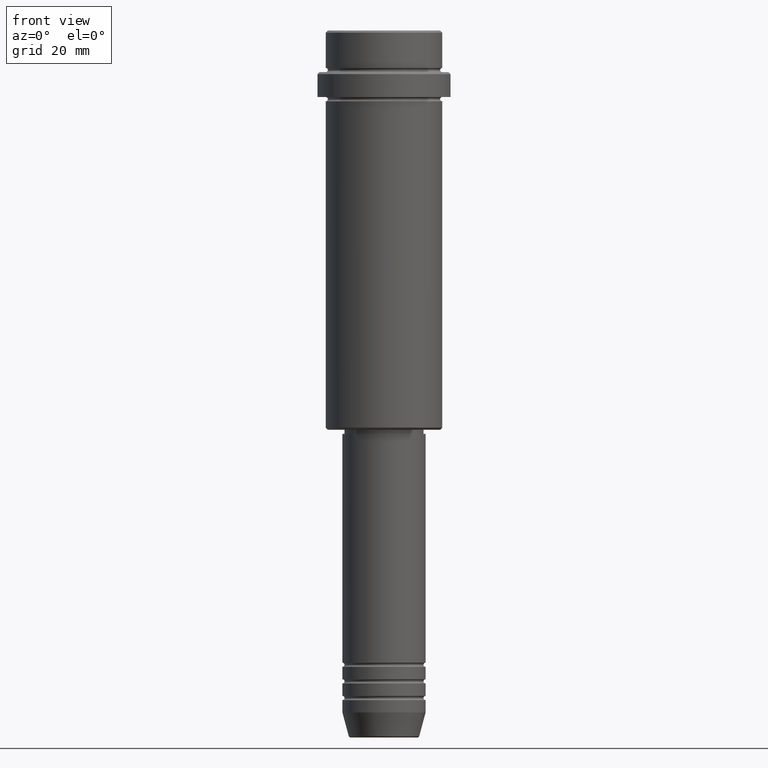
[diagram: clean part render]
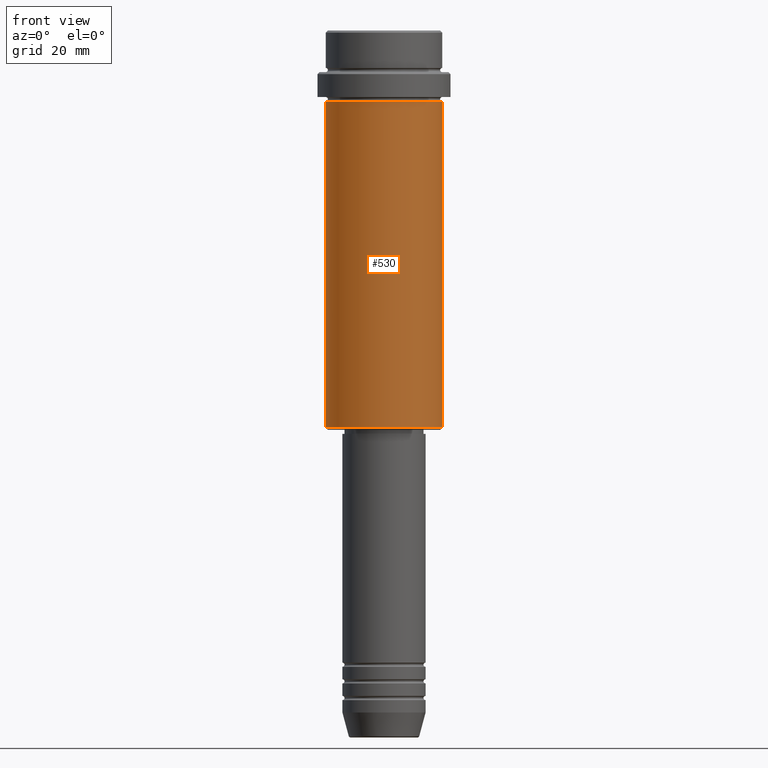
[diagram: same view with one face highlighted and labeled with its STEP entity id]
A machine part, front view. The second image highlights one B-rep face of the part: STEP entity #530.
In plain terms, the highlighted cylindrical surface (partial cylindrical patch) has radius 14 mm, axis along (-0, -0, 1).
Its self-contained STEP definition (entity closure, byte-faithful):
#24 = VECTOR ( 'NONE', #208, 1000.000000000000000 ) ;
#53 = CARTESIAN_POINT ( 'NONE',  ( 13.99999999999997868, 0.000000000000000000, -17.00000000000000355 ) ) ;
#69 = CARTESIAN_POINT ( 'NONE',  ( 13.99999999999998934, 0.000000000000000000, -95.50000000000000000 ) ) ;
#125 = DIRECTION ( 'NONE',  ( -0.000000000000000000, -0.000000000000000000, 1.000000000000000000 ) ) ;
#156 = CIRCLE ( 'NONE', #294, 13.99999999999998934 ) ;
#195 = DIRECTION ( 'NONE',  ( -0.000000000000000000, -0.000000000000000000, 1.000000000000000000 ) ) ;
#208 = DIRECTION ( 'NONE',  ( -0.000000000000000000, -0.000000000000000000, 1.000000000000000000 ) ) ;
#221 = CARTESIAN_POINT ( 'NONE',  ( -13.99999999999998934, 1.714505518806293257E-15, 0.000000000000000000 ) ) ;
#237 = CARTESIAN_POINT ( 'NONE',  ( 0.000000000000000000, 0.000000000000000000, 0.000000000000000000 ) ) ;
#257 = ORIENTED_EDGE ( 'NONE', *, *, #936, .F. ) ;
#272 = CIRCLE ( 'NONE', #594, 13.99999999999997868 ) ;
#294 = AXIS2_PLACEMENT_3D ( 'NONE', #1107, #125, #810 ) ;
#344 = DIRECTION ( 'NONE',  ( 1.000000000000000000, 0.000000000000000000, 0.000000000000000000 ) ) ;
#352 = DIRECTION ( 'NONE',  ( -0.000000000000000000, -0.000000000000000000, 1.000000000000000000 ) ) ;
#403 = DIRECTION ( 'NONE',  ( -0.000000000000000000, -0.000000000000000000, 1.000000000000000000 ) ) ;
#414 = VECTOR ( 'NONE', #403, 1000.000000000000000 ) ;
#526 = LINE ( 'NONE', #844, #414 ) ;
#530 = ADVANCED_FACE ( 'NONE', ( #1134 ), #908, .T. ) ;
#564 = EDGE_CURVE ( 'NONE', #848, #1193, #156, .T. ) ;
#594 = AXIS2_PLACEMENT_3D ( 'NONE', #1407, #195, #1298 ) ;
#625 = EDGE_LOOP ( 'NONE', ( #257, #960, #1004, #862 ) ) ;
#731 = AXIS2_PLACEMENT_3D ( 'NONE', #237, #352, #344 ) ;
#810 = DIRECTION ( 'NONE',  ( -1.000000000000000000, 0.000000000000000000, 0.000000000000000000 ) ) ;
#844 = CARTESIAN_POINT ( 'NONE',  ( 13.99999999999998934, 0.000000000000000000, 0.000000000000000000 ) ) ;
#848 = VERTEX_POINT ( 'NONE', #1211 ) ;
#862 = ORIENTED_EDGE ( 'NONE', *, *, #910, .F. ) ;
#908 = CYLINDRICAL_SURFACE ( 'NONE', #731, 13.99999999999998934 ) ;
#910 = EDGE_CURVE ( 'NONE', #1358, #1130, #272, .T. ) ;
#936 = EDGE_CURVE ( 'NONE', #848, #1358, #1310, .T. ) ;
#960 = ORIENTED_EDGE ( 'NONE', *, *, #564, .T. ) ;
#1004 = ORIENTED_EDGE ( 'NONE', *, *, #1210, .T. ) ;
#1107 = CARTESIAN_POINT ( 'NONE',  ( 0.000000000000000000, 0.000000000000000000, -95.50000000000000000 ) ) ;
#1130 = VERTEX_POINT ( 'NONE', #53 ) ;
#1134 = FACE_OUTER_BOUND ( 'NONE', #625, .T. ) ;
#1193 = VERTEX_POINT ( 'NONE', #69 ) ;
#1210 = EDGE_CURVE ( 'NONE', #1193, #1130, #526, .T. ) ;
#1211 = CARTESIAN_POINT ( 'NONE',  ( -13.99999999999998934, 1.714505518806293257E-15, -95.50000000000000000 ) ) ;
#1298 = DIRECTION ( 'NONE',  ( 1.000000000000000000, 0.000000000000000000, 0.000000000000000000 ) ) ;
#1310 = LINE ( 'NONE', #221, #24 ) ;
#1358 = VERTEX_POINT ( 'NONE', #1385 ) ;
#1385 = CARTESIAN_POINT ( 'NONE',  ( -13.99999999999997868, 1.714505518806292666E-15, -17.00000000000000355 ) ) ;
#1407 = CARTESIAN_POINT ( 'NONE',  ( 0.000000000000000000, 0.000000000000000000, -17.00000000000000355 ) ) ;